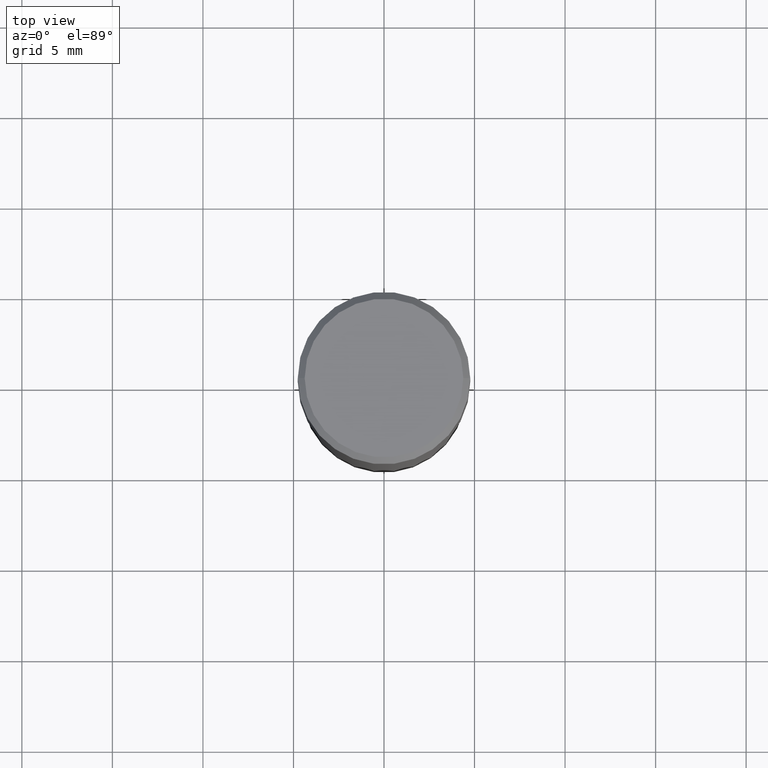
[diagram: clean part render]
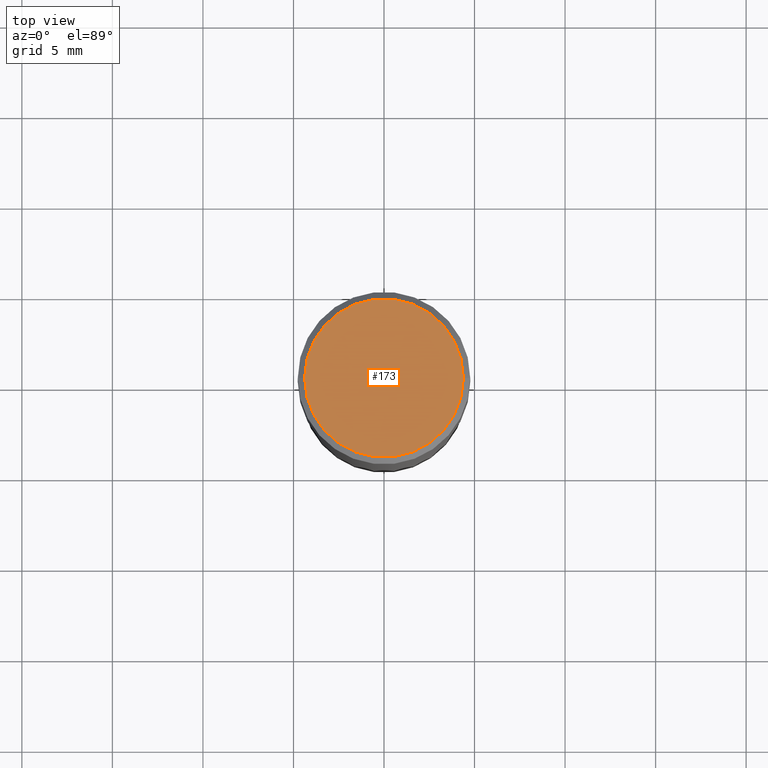
[diagram: same view with one face highlighted and labeled with its STEP entity id]
A machine part, top view. The second image highlights one B-rep face of the part: STEP entity #173.
In plain terms, the highlighted planar face has unit normal (0, -0, -1).
Its self-contained STEP definition (entity closure, byte-faithful):
#23 = CARTESIAN_POINT ( 'NONE',  ( 0.1725000000000000144, -1.261075749640199308E-15, -2.636744989014362231E-17 ) ) ;
#32 = AXIS2_PLACEMENT_3D ( 'NONE', #256, #393, #184 ) ;
#96 = DIRECTION ( 'NONE',  ( 1.000000000000000000, -6.982962677686266711E-15, 4.876912640186324808E-29 ) ) ;
#118 = VERTEX_POINT ( 'NONE', #23 ) ;
#131 = DIRECTION ( 'NONE',  ( -2.445468806185136597E-29, 3.491481338843145583E-15, 1.000000000000000000 ) ) ;
#145 = CIRCLE ( 'NONE', #425, 0.1725000000000000144 ) ;
#146 = DIRECTION ( 'NONE',  ( 2.438088387897960049E-29, -3.491481338843145188E-15, -1.000000000000000000 ) ) ;
#155 = ORIENTED_EDGE ( 'NONE', *, *, #439, .T. ) ;
#157 = CARTESIAN_POINT ( 'NONE',  ( -0.1725000000000000144, 1.230747171942204192E-15, -2.636744989016075847E-17 ) ) ;
#173 = ADVANCED_FACE ( 'NONE', ( #430 ), #180, .F. ) ;
#180 = PLANE ( 'NONE',  #291 ) ;
#184 = DIRECTION ( 'NONE',  ( 1.000000000000000000, -6.982962677686266711E-15, 4.876912640186324808E-29 ) ) ;
#219 = EDGE_LOOP ( 'NONE', ( #265, #155 ) ) ;
#223 = CARTESIAN_POINT ( 'NONE',  ( 1.204561061900881047E-15, 0.1725000000000000144, -6.154642558955188135E-16 ) ) ;
#239 = EDGE_CURVE ( 'NONE', #351, #118, #372, .T. ) ;
#256 = CARTESIAN_POINT ( 'NONE',  ( 6.448077620501702025E-46, -9.206145924434830208E-32, -2.636744989015224123E-17 ) ) ;
#265 = ORIENTED_EDGE ( 'NONE', *, *, #239, .T. ) ;
#283 = CARTESIAN_POINT ( 'NONE',  ( 6.448077620501702025E-46, -9.206145924434830208E-32, -2.636744989015224123E-17 ) ) ;
#285 = DIRECTION ( 'NONE',  ( -1.000000000000000000, 6.982962677686265922E-15, -4.876176775795935793E-29 ) ) ;
#291 = AXIS2_PLACEMENT_3D ( 'NONE', #223, #146, #285 ) ;
#351 = VERTEX_POINT ( 'NONE', #157 ) ;
#372 = CIRCLE ( 'NONE', #32, 0.1725000000000000144 ) ;
#393 = DIRECTION ( 'NONE',  ( -2.445468806185136597E-29, 3.491481338843145583E-15, 1.000000000000000000 ) ) ;
#425 = AXIS2_PLACEMENT_3D ( 'NONE', #283, #131, #96 ) ;
#430 = FACE_OUTER_BOUND ( 'NONE', #219, .T. ) ;
#439 = EDGE_CURVE ( 'NONE', #118, #351, #145, .T. ) ;